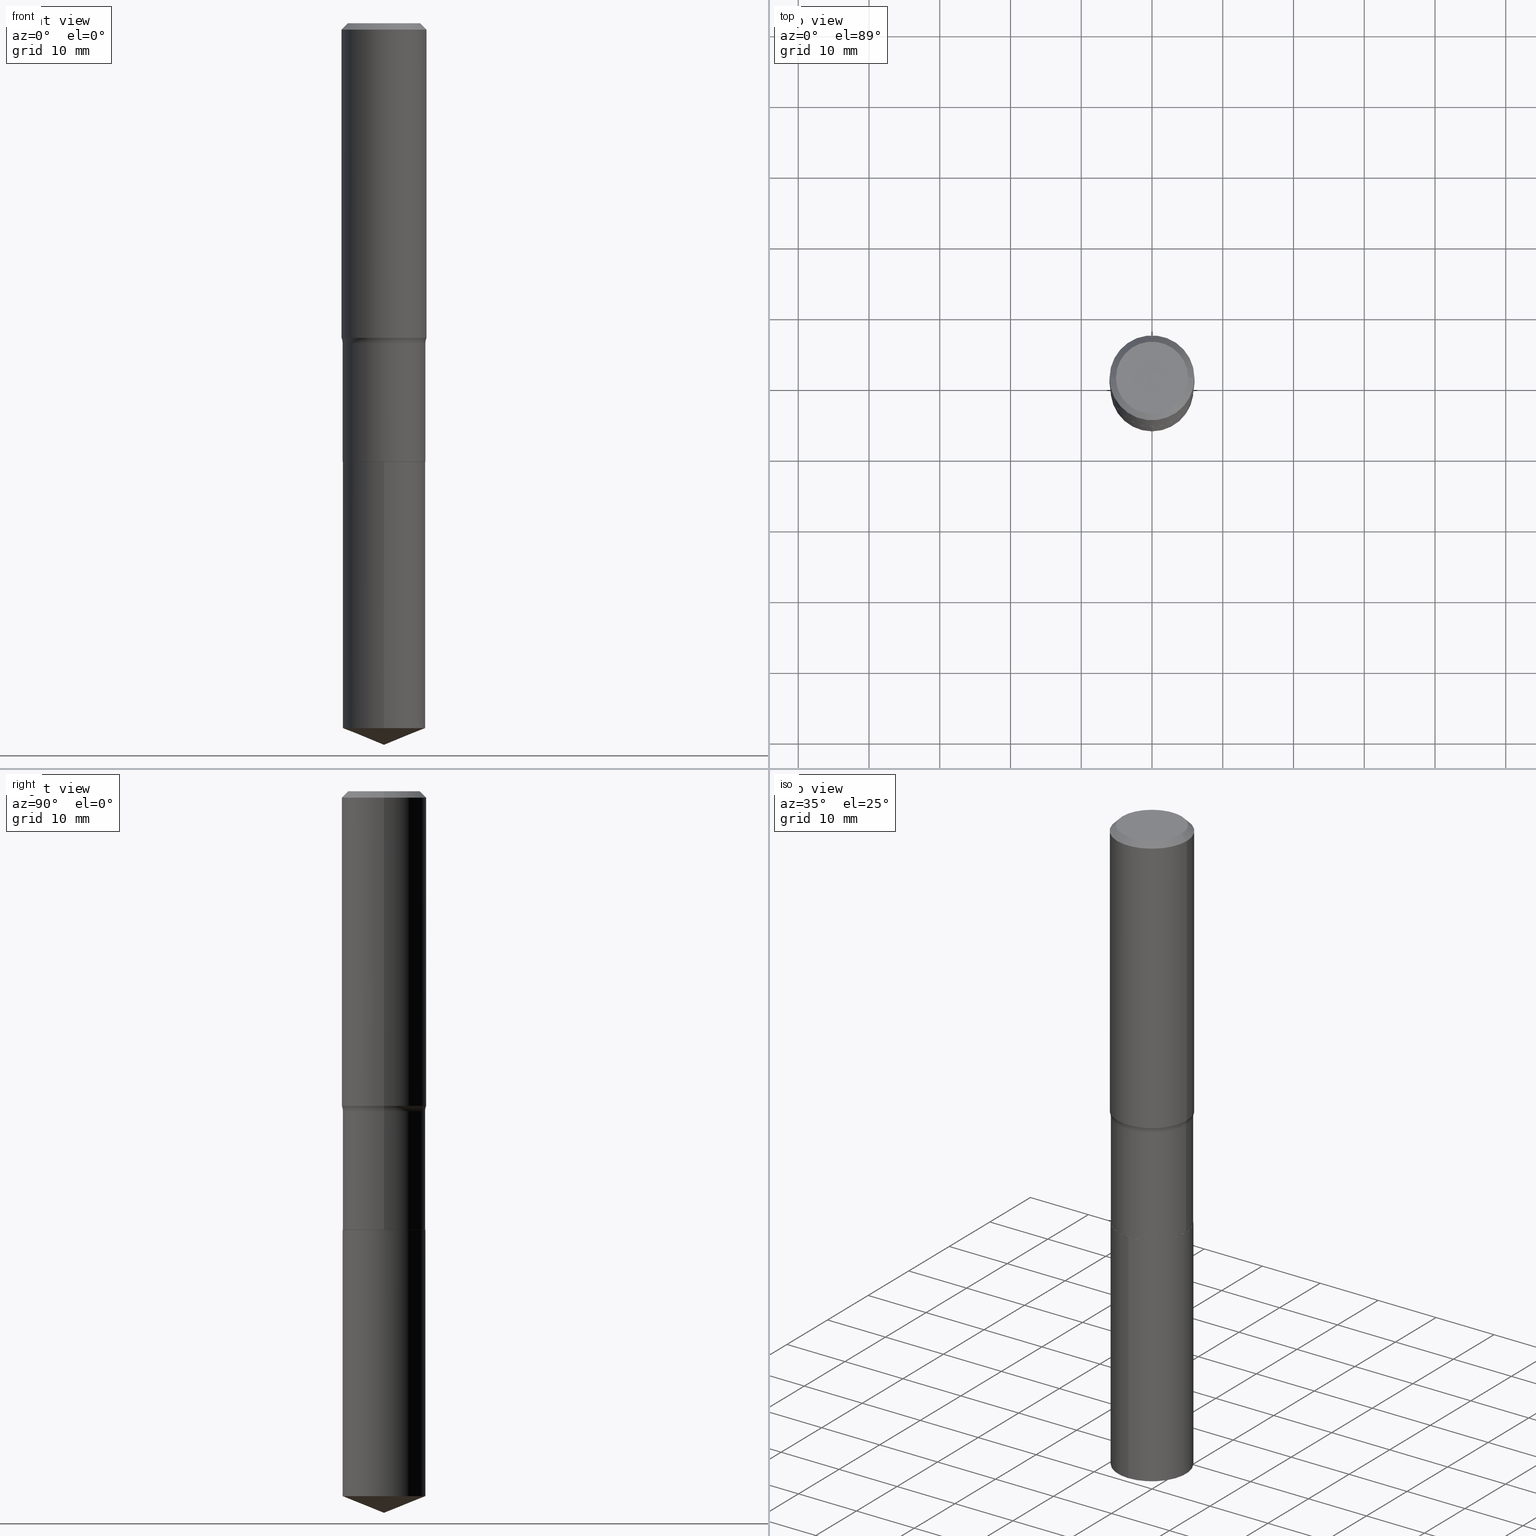
[diagram: canonical four-view strip — front | top / right | iso, engineering-drawing reading convention]
A machine part, canonical four-view strip (front | top / right | iso — engineering-drawing reading convention). The complete STEP part file that produces these views, byte-faithful:
ISO-10303-21;
HEADER;
FILE_DESCRIPTION (( 'STEP AP203' ),
    '1' );
FILE_NAME ('69207.STEP',
    '2024-04-19T17:23:30',
    ( '' ),
    ( '' ),
    'SwSTEP 2.0',
    'SolidWorks 2023',
    '' );
FILE_SCHEMA (( 'CONFIG_CONTROL_DESIGN' ));
ENDSEC;

DATA;
#1 = EDGE_LOOP ( 'NONE', ( #123, #155, #210, #284 ) ) ;
#2 = DIRECTION ( 'NONE',  ( -2.445468806185136597E-29, 3.491481338843145583E-15, 1.000000000000000000 ) ) ;
#3 = DIRECTION ( 'NONE',  ( -2.445425754346182208E-29, 3.491542991526886220E-15, 1.000000000000000000 ) ) ;
#4 =( NAMED_UNIT ( * ) PLANE_ANGLE_UNIT ( ) SI_UNIT ( $, .RADIAN. ) );
#5 = AXIS2_PLACEMENT_3D ( 'NONE', #18, #177, #332 ) ;
#6 = CLOSED_SHELL ( 'NONE', ( #167, #400, #464, #215, #93, #255, #445, #158, #114, #133, #408, #122 ) ) ;
#7 = EDGE_LOOP ( 'NONE', ( #324, #40, #430, #349 ) ) ;
#8 = APPROVAL_STATUS ( 'not_yet_approved' ) ;
#9 = EDGE_CURVE ( 'NONE', #115, #235, #407, .T. ) ;
#10 = VERTEX_POINT ( 'NONE', #147 ) ;
#11 = COORDINATED_UNIVERSAL_TIME_OFFSET ( 5, 0, .BEHIND. ) ;
#12 = APPROVAL_ROLE ( '' ) ;
#13 = APPROVAL_ROLE ( '' ) ;
#14 = EDGE_CURVE ( 'NONE', #235, #115, #375, .T. ) ;
#15 = SHAPE_DEFINITION_REPRESENTATION ( #67, #250 ) ;
#16 = DIRECTION ( 'NONE',  ( -2.445468806185136877E-29, 3.491481338843145188E-15, 1.000000000000000000 ) ) ;
#17 = CONICAL_SURFACE ( 'NONE', #97, 0.2361999999999999933, 0.7853981633974452814 ) ;
#18 = CARTESIAN_POINT ( 'NONE',  ( 5.967922074614207358E-29, -8.520611059312812251E-15, -2.440399999999999903 ) ) ;
#19 = EDGE_CURVE ( 'NONE', #249, #279, #328, .T. ) ;
#20 = DIRECTION ( 'NONE',  ( -2.445468806185136597E-29, 3.491481338843145583E-15, 1.000000000000000000 ) ) ;
#21 = CARTESIAN_POINT ( 'NONE',  ( -0.2361999999999999933, 1.525672600634282748E-15, -0.03543000000000021826 ) ) ;
#22 = SECURITY_CLASSIFICATION ( '', '', #293 ) ;
#23 = CARTESIAN_POINT ( 'NONE',  ( 0.2361999999999999933, -1.744152810908849053E-15, -0.03543000000000021826 ) ) ;
#24 = EDGE_CURVE ( 'NONE', #425, #386, #449, .T. ) ;
#25 = AXIS2_PLACEMENT_3D ( 'NONE', #225, #481, #479 ) ;
#26 = EDGE_LOOP ( 'NONE', ( #162, #30, #106, #281 ) ) ;
#27 = FACE_OUTER_BOUND ( 'NONE', #70, .T. ) ;
#28 = DIRECTION ( 'NONE',  ( 2.438088387897960049E-29, -3.491481338843145188E-15, -1.000000000000000000 ) ) ;
#29 = EDGE_CURVE ( 'NONE', #381, #235, #71, .T. ) ;
#30 = ORIENTED_EDGE ( 'NONE', *, *, #231, .T. ) ;
#31 = DIRECTION ( 'NONE',  ( -2.445468806185136597E-29, 3.491481338843145583E-15, 1.000000000000000000 ) ) ;
#32 = DIRECTION ( 'NONE',  ( 1.000000000000000000, -6.982962677686266711E-15, 4.876176775795935793E-29 ) ) ;
#33 = ORIENTED_EDGE ( 'NONE', *, *, #231, .F. ) ;
#34 = CARTESIAN_POINT ( 'NONE',  ( -0.2302999999999999770, 1.636379920455510564E-15, -1.132830751285704610E-29 ) ) ;
#35 = LINE ( 'NONE', #320, #96 ) ;
#36 = CC_DESIGN_APPROVAL ( #413, ( #22 ) ) ;
#37 = AXIS2_PLACEMENT_3D ( 'NONE', #102, #20, #377 ) ;
#38 = DIRECTION ( 'NONE',  ( 1.000000000000000000, -6.982962677686266711E-15, 0.000000000000000000 ) ) ;
#39 = DIRECTION ( 'NONE',  ( -2.445468806185136597E-29, 3.491481338843145583E-15, 1.000000000000000000 ) ) ;
#40 = ORIENTED_EDGE ( 'NONE', *, *, #423, .T. ) ;
#41 = DIRECTION ( 'NONE',  ( -2.445425754346182208E-29, 3.491542991526886614E-15, 1.000000000000000000 ) ) ;
#42 = DIRECTION ( 'NONE',  ( 1.000000000000000000, -6.982962677686266711E-15, 4.876140833081945105E-29 ) ) ;
#43 = ORIENTED_EDGE ( 'NONE', *, *, #19, .T. ) ;
#44 = CYLINDRICAL_SURFACE ( 'NONE', #197, 0.2302999999999999770 ) ;
#45 = CARTESIAN_POINT ( 'NONE',  ( 0.2362000000000002153, -7.764499826107920315E-15, -1.751441135774360447 ) ) ;
#46 = ORIENTED_EDGE ( 'NONE', *, *, #472, .T. ) ;
#47 = AXIS2_PLACEMENT_3D ( 'NONE', #259, #95, #140 ) ;
#48 = ORIENTED_EDGE ( 'NONE', *, *, #29, .F. ) ;
#49 = DATE_AND_TIME ( #127, #260 ) ;
#50 = ORIENTED_EDGE ( 'NONE', *, *, #59, .T. ) ;
#51 = CALENDAR_DATE ( 2024, 19, 4 ) ;
#52 = AXIS2_PLACEMENT_3D ( 'NONE', #108, #31, #348 ) ;
#53 = PERSON_AND_ORGANIZATION_ROLE ( 'creator' ) ;
#54 = DATE_AND_TIME ( #51, #244 ) ;
#55 = CARTESIAN_POINT ( 'NONE',  ( -0.3082999999999999075, -4.028423306399022223E-15, -1.781199999999999894 ) ) ;
#56 = AXIS2_PLACEMENT_3D ( 'NONE', #98, #373, #180 ) ;
#57 = AXIS2_PLACEMENT_3D ( 'NONE', #55, #213, #368 ) ;
#58 = DIRECTION ( 'NONE',  ( -2.445425754346182208E-29, 3.491542991526886614E-15, 1.000000000000000000 ) ) ;
#59 = EDGE_CURVE ( 'NONE', #415, #78, #240, .T. ) ;
#60 = CARTESIAN_POINT ( 'NONE',  ( 8.664295980313993487E-31, -1.237031838352134079E-16, -0.03543000000000021826 ) ) ;
#61 = DIRECTION ( 'NONE',  ( 1.000000000000000000, -6.982962677686268288E-15, 0.000000000000000000 ) ) ;
#62 = ORIENTED_EDGE ( 'NONE', *, *, #489, .F. ) ;
#63 = DIRECTION ( 'NONE',  ( -0.7071067811865453523, 2.468850131082234184E-15, -0.7071067811865496822 ) ) ;
#64 = MANIFOLD_SOLID_BREP ( 'Body-Move/Copy2[2]', #6 ) ;
#65 = CARTESIAN_POINT ( 'NONE',  ( 5.969144809017300159E-29, -8.522356799982234543E-15, -2.440900000000000070 ) ) ;
#66 = EDGE_LOOP ( 'NONE', ( #376, #339, #224 ) ) ;
#67 = PRODUCT_DEFINITION_SHAPE ( 'NONE', 'NONE',  #470 ) ;
#68 = DIRECTION ( 'NONE',  ( 1.000000000000000000, -6.982962677686266711E-15, 4.876176775795935793E-29 ) ) ;
#69 = DIRECTION ( 'NONE',  ( 1.000000000000000000, -6.982962677686265922E-15, 4.876176775795935793E-29 ) ) ;
#70 = EDGE_LOOP ( 'NONE', ( #183, #46, #242, #112 ) ) ;
#71 = LINE ( 'NONE', #340, #474 ) ;
#72 = DIRECTION ( 'NONE',  ( 1.000000000000000000, -6.982962677686266711E-15, 4.876140833081945105E-29 ) ) ;
#73 = EDGE_LOOP ( 'NONE', ( #247, #187, #426 ) ) ;
#74 = DIRECTION ( 'NONE',  ( -1.000000000000000000, 6.982962677686266711E-15, 0.000000000000000000 ) ) ;
#75 = CYLINDRICAL_SURFACE ( 'NONE', #467, 0.2362000000000001043 ) ;
#76 = APPROVAL_PERSON_ORGANIZATION ( #285, #209, #12 ) ;
#77 = ORIENTED_EDGE ( 'NONE', *, *, #9, .T. ) ;
#78 = VERTEX_POINT ( 'NONE', #394 ) ;
#79 = FACE_OUTER_BOUND ( 'NONE', #201, .T. ) ;
#80 = DIRECTION ( 'NONE',  ( 2.445468806185136597E-29, -3.491481338843145583E-15, -1.000000000000000000 ) ) ;
#81 = VERTEX_POINT ( 'NONE', #350 ) ;
#82 =( NAMED_UNIT ( * ) SI_UNIT ( $, .STERADIAN. ) SOLID_ANGLE_UNIT ( ) );
#83 = CIRCLE ( 'NONE', #466, 0.07799999999999995826 ) ;
#84 = CC_DESIGN_PERSON_AND_ORGANIZATION_ASSIGNMENT ( #207, #53, ( #396 ) ) ;
#85 = CIRCLE ( 'NONE', #25, 0.2302999999999999214 ) ;
#86 = ORIENTED_EDGE ( 'NONE', *, *, #103, .F. ) ;
#87 = CARTESIAN_POINT ( 'NONE',  ( 0.000000000000000000, 0.000000000000000000, 0.000000000000000000 ) ) ;
#88 = PERSON_AND_ORGANIZATION ( #336, #432 ) ;
#89 = DIRECTION ( 'NONE',  ( -2.445468806185136877E-29, 3.491481338843145188E-15, 1.000000000000000000 ) ) ;
#90 =( GEOMETRIC_REPRESENTATION_CONTEXT ( 3 ) GLOBAL_UNCERTAINTY_ASSIGNED_CONTEXT ( ( #463 ) ) GLOBAL_UNIT_ASSIGNED_CONTEXT ( ( #193, #4, #82 ) ) REPRESENTATION_CONTEXT ( 'NONE', 'WORKASPACE' ) );
#91 = VECTOR ( 'NONE', #16, 39.37007874015748143 ) ;
#92 = DATE_AND_TIME ( #212, #288 ) ;
#93 = ADVANCED_FACE ( 'NONE', ( #79 ), #44, .T. ) ;
#94 = FACE_OUTER_BOUND ( 'NONE', #146, .T. ) ;
#95 = DIRECTION ( 'NONE',  ( -2.445468806185136597E-29, 3.491481338843145583E-15, 1.000000000000000000 ) ) ;
#96 = VECTOR ( 'NONE', #458, 39.37007874015748143 ) ;
#97 = AXIS2_PLACEMENT_3D ( 'NONE', #276, #420, #74 ) ;
#98 = CARTESIAN_POINT ( 'NONE',  ( 0.000000000000000000, 0.000000000000000000, 0.000000000000000000 ) ) ;
#99 = EDGE_CURVE ( 'NONE', #135, #381, #469, .T. ) ;
#100 = DIRECTION ( 'NONE',  ( -2.445468806185136597E-29, 3.491481338843145583E-15, 1.000000000000000000 ) ) ;
#101 = VERTEX_POINT ( 'NONE', #188 ) ;
#102 = CARTESIAN_POINT ( 'NONE',  ( 4.355869037576965171E-29, -6.219026560747410438E-15, -1.781199999999999894 ) ) ;
#103 = EDGE_CURVE ( 'NONE', #135, #115, #347, .T. ) ;
#104 = DIRECTION ( 'NONE',  ( -0.7071067811864267805, 7.493145998869918709E-15, 0.7071067811866682540 ) ) ;
#105 = AXIS2_PLACEMENT_3D ( 'NONE', #460, #283, #69 ) ;
#106 = ORIENTED_EDGE ( 'NONE', *, *, #265, .T. ) ;
#107 = DIRECTION ( 'NONE',  ( -2.445468806185136597E-29, 3.491481338843145583E-15, 1.000000000000000000 ) ) ;
#108 = CARTESIAN_POINT ( 'NONE',  ( 4.355869037576965171E-29, -6.219026560747410438E-15, -1.781199999999999894 ) ) ;
#109 = AXIS2_PLACEMENT_3D ( 'NONE', #338, #300, #61 ) ;
#110 = DIRECTION ( 'NONE',  ( -2.445425754346182208E-29, 3.491542991526886614E-15, 1.000000000000000000 ) ) ;
#111 = CARTESIAN_POINT ( 'NONE',  ( 0.000000000000000000, 0.000000000000000000, 0.000000000000000000 ) ) ;
#112 = ORIENTED_EDGE ( 'NONE', *, *, #226, .F. ) ;
#113 = CARTESIAN_POINT ( 'NONE',  ( 0.000000000000000000, 0.000000000000000000, 0.000000000000000000 ) ) ;
#114 = ADVANCED_FACE ( 'NONE', ( #116 ), #17, .T. ) ;
#115 = VERTEX_POINT ( 'NONE', #227 ) ;
#116 = FACE_OUTER_BOUND ( 'NONE', #318, .T. ) ;
#117 = LINE ( 'NONE', #387, #480 ) ;
#118 = EDGE_CURVE ( 'NONE', #381, #135, #174, .T. ) ;
#119 = EDGE_LOOP ( 'NONE', ( #270, #492, #459, #86 ) ) ;
#120 = FACE_OUTER_BOUND ( 'NONE', #1, .T. ) ;
#121 = LOCAL_TIME ( 13, 23, 30.00000000000000000, #11 ) ;
#122 = ADVANCED_FACE ( 'NONE', ( #477 ), #246, .T. ) ;
#123 = ORIENTED_EDGE ( 'NONE', *, *, #175, .T. ) ;
#124 = DIRECTION ( 'NONE',  ( -2.445425754346182208E-29, 3.491542991526886614E-15, 1.000000000000000000 ) ) ;
#125 = CARTESIAN_POINT ( 'NONE',  ( 9.820096201727964997E-29, -1.402098919107452008E-14, -4.015699999999999825 ) ) ;
#126 = ORIENTED_EDGE ( 'NONE', *, *, #434, .F. ) ;
#127 = CALENDAR_DATE ( 2024, 19, 4 ) ;
#128 = ORIENTED_EDGE ( 'NONE', *, *, #118, .T. ) ;
#129 = DIRECTION ( 'NONE',  ( 0.000000000000000000, 0.000000000000000000, 1.000000000000000000 ) ) ;
#130 = VECTOR ( 'NONE', #63, 39.37007874015748143 ) ;
#131 = PRODUCT_RELATED_PRODUCT_CATEGORY ( 'detail', '', ( #149 ) ) ;
#132 = AXIS2_PLACEMENT_3D ( 'NONE', #409, #100, #437 ) ;
#133 = ADVANCED_FACE ( 'NONE', ( #296 ), #404, .F. ) ;
#134 = APPROVAL_DATE_TIME ( #329, #176 ) ;
#135 = VERTEX_POINT ( 'NONE', #485 ) ;
#136 = PERSON_AND_ORGANIZATION_ROLE ( 'design_supplier' ) ;
#137 = EDGE_CURVE ( 'NONE', #425, #249, #317, .T. ) ;
#138 = VECTOR ( 'NONE', #438, 39.37007874015748143 ) ;
#139 = DATE_TIME_ROLE ( 'classification_date' ) ;
#140 = DIRECTION ( 'NONE',  ( 1.000000000000000000, -6.982962677686267499E-15, 0.000000000000000000 ) ) ;
#141 = EDGE_CURVE ( 'NONE', #159, #415, #256, .T. ) ;
#142 = LINE ( 'NONE', #23, #138 ) ;
#143 = DIRECTION ( 'NONE',  ( 1.000000000000000000, -6.982962677686274599E-15, 0.000000000000000000 ) ) ;
#144 = LINE ( 'NONE', #21, #130 ) ;
#145 = DIRECTION ( 'NONE',  ( -6.982962677686265922E-15, -1.000000000000000000, 2.372425526412734110E-15 ) ) ;
#146 = EDGE_LOOP ( 'NONE', ( #77, #358 ) ) ;
#147 = CARTESIAN_POINT ( 'NONE',  ( 0.2007700000000000040, -1.560767496960719672E-15, 4.096137381458473721E-18 ) ) ;
#148 = DIRECTION ( 'NONE',  ( 1.000000000000000000, -6.982962677686267499E-15, 0.000000000000000000 ) ) ;
#149 = PRODUCT ( '69207', '69207', '', ( #398 ) ) ;
#150 = EDGE_CURVE ( 'NONE', #81, #159, #310, .T. ) ;
#151 = EDGE_LOOP ( 'NONE', ( #206, #194, #397, #229 ) ) ;
#152 = CARTESIAN_POINT ( 'NONE',  ( 5.967922074614207358E-29, -8.520611059312812251E-15, -2.440399999999999903 ) ) ;
#153 = AXIS2_PLACEMENT_3D ( 'NONE', #220, #267, #219 ) ;
#154 = DIRECTION ( 'NONE',  ( 1.000000000000000000, -6.982962677686267499E-15, 0.000000000000000000 ) ) ;
#155 = ORIENTED_EDGE ( 'NONE', *, *, #137, .T. ) ;
#156 = CARTESIAN_POINT ( 'NONE',  ( -1.608176304671087313E-15, -0.2303000000000085257, -2.440899999999999181 ) ) ;
#157 = LENGTH_MEASURE_WITH_UNIT ( LENGTH_MEASURE( 0.02539999999999999897 ), #383 );
#158 = ADVANCED_FACE ( 'NONE', ( #342 ), #450, .T. ) ;
#159 = VERTEX_POINT ( 'NONE', #354 ) ;
#160 = CARTESIAN_POINT ( 'NONE',  ( 5.969144809017300159E-29, -8.522356799982234543E-15, -2.440900000000000070 ) ) ;
#161 = EDGE_CURVE ( 'NONE', #386, #279, #385, .T. ) ;
#162 = ORIENTED_EDGE ( 'NONE', *, *, #491, .F. ) ;
#163 = DIRECTION ( 'NONE',  ( -2.445468806185136597E-29, 3.491481338843145583E-15, 1.000000000000000000 ) ) ;
#164 = DIRECTION ( 'NONE',  ( 1.000000000000000000, -6.982962677686266711E-15, 4.876176775795935793E-29 ) ) ;
#165 = AXIS2_PLACEMENT_3D ( 'NONE', #65, #262, #228 ) ;
#166 = ORIENTED_EDGE ( 'NONE', *, *, #423, .F. ) ;
#167 = ADVANCED_FACE ( 'NONE', ( #299 ), #399, .T. ) ;
#168 = APPROVAL_STATUS ( 'not_yet_approved' ) ;
#169 = VERTEX_POINT ( 'NONE', #334 ) ;
#170 = CALENDAR_DATE ( 2024, 19, 4 ) ;
#171 = PERSON_AND_ORGANIZATION ( #336, #432 ) ;
#172 = PERSON_AND_ORGANIZATION ( #336, #432 ) ;
#173 = AXIS2_PLACEMENT_3D ( 'NONE', #419, #2, #72 ) ;
#174 = CIRCLE ( 'NONE', #345, 0.2303000000000000047 ) ;
#175 = EDGE_CURVE ( 'NONE', #386, #425, #217, .T. ) ;
#176 = APPROVAL ( #8, 'UNSPECIFIED' ) ;
#177 = DIRECTION ( 'NONE',  ( -2.445468806185136597E-29, 3.491481338843145583E-15, 1.000000000000000000 ) ) ;
#178 = CARTESIAN_POINT ( 'NONE',  ( -0.2361999999999999933, -1.441111670871460516E-15, -0.03543000000000021826 ) ) ;
#179 = FACE_OUTER_BOUND ( 'NONE', #73, .T. ) ;
#180 = DIRECTION ( 'NONE',  ( 1.000000000000000000, -6.982962677686266711E-15, 4.876176775795935793E-29 ) ) ;
#181 = CARTESIAN_POINT ( 'NONE',  ( -8.645640321485652588E-28, 1.234414837980197635E-13, 35.35437874015748605 ) ) ;
#182 = EDGE_CURVE ( 'NONE', #352, #78, #85, .T. ) ;
#183 = ORIENTED_EDGE ( 'NONE', *, *, #59, .F. ) ;
#184 = CARTESIAN_POINT ( 'NONE',  ( 8.664295980313993487E-31, -1.237031838352134079E-16, -0.03543000000000021826 ) ) ;
#185 = DIRECTION ( 'NONE',  ( -2.445468806185136597E-29, 3.491481338843145583E-15, 1.000000000000000000 ) ) ;
#186 = AXIS2_PLACEMENT_3D ( 'NONE', #406, #58, #304 ) ;
#187 = ORIENTED_EDGE ( 'NONE', *, *, #366, .T. ) ;
#188 = CARTESIAN_POINT ( 'NONE',  ( -0.2007700000000000040, 1.463821008716677338E-15, 4.096137381438094301E-18 ) ) ;
#189 = CARTESIAN_POINT ( 'NONE',  ( 0.2303000000000000047, -1.012878736398395971E-14, -2.440399999999999903 ) ) ;
#190 = AXIS2_PLACEMENT_3D ( 'NONE', #447, #353, #38 ) ;
#191 = ORIENTED_EDGE ( 'NONE', *, *, #161, .T. ) ;
#192 = DIRECTION ( 'NONE',  ( -6.982962677686265922E-15, -1.000000000000000000, 3.558638289619100968E-15 ) ) ;
#193 =( CONVERSION_BASED_UNIT ( 'INCH', #157 ) LENGTH_UNIT ( ) NAMED_UNIT ( #205 ) );
#194 = ORIENTED_EDGE ( 'NONE', *, *, #175, .F. ) ;
#195 = LINE ( 'NONE', #125, #473 ) ;
#196 = LOCAL_TIME ( 13, 23, 30.00000000000000000, #365 ) ;
#197 = AXIS2_PLACEMENT_3D ( 'NONE', #418, #107, #68 ) ;
#198 = CC_DESIGN_PERSON_AND_ORGANIZATION_ASSIGNMENT ( #251, #136, ( #396 ) ) ;
#199 = ORIENTED_EDGE ( 'NONE', *, *, #417, .F. ) ;
#200 = DIRECTION ( 'NONE',  ( 1.000000000000000000, 0.000000000000000000, 0.000000000000000000 ) ) ;
#201 = EDGE_LOOP ( 'NONE', ( #355, #50, #315, #126 ) ) ;
#202 = EDGE_CURVE ( 'NONE', #386, #352, #83, .T. ) ;
#203 = PERSON_AND_ORGANIZATION ( #336, #432 ) ;
#204 = CARTESIAN_POINT ( 'NONE',  ( 0.2362000000000001043, -1.649375784469496920E-15, 1.151752954443000508E-29 ) ) ;
#205 = DIMENSIONAL_EXPONENTS ( 1.000000000000000000, 0.000000000000000000, 0.000000000000000000, 0.000000000000000000, 0.000000000000000000, 0.000000000000000000, 0.000000000000000000 ) ;
#206 = ORIENTED_EDGE ( 'NONE', *, *, #314, .F. ) ;
#207 = PERSON_AND_ORGANIZATION ( #336, #432 ) ;
#208 = CIRCLE ( 'NONE', #311, 0.2303000000000000047 ) ;
#209 = APPROVAL ( #168, 'UNSPECIFIED' ) ;
#210 = ORIENTED_EDGE ( 'NONE', *, *, #265, .F. ) ;
#211 = CARTESIAN_POINT ( 'NONE',  ( 5.969144809017300159E-29, -8.522356799982234543E-15, -2.440900000000000070 ) ) ;
#212 = CALENDAR_DATE ( 2024, 19, 4 ) ;
#213 = DIRECTION ( 'NONE',  ( 7.105427357601001859E-15, 1.000000000000000000, -3.491481338843145583E-15 ) ) ;
#214 = AXIS2_PLACEMENT_3D ( 'NONE', #237, #124, #390 ) ;
#215 = ADVANCED_FACE ( 'NONE', ( #302 ), #243, .F. ) ;
#216 = CC_DESIGN_APPROVAL ( #176, ( #396 ) ) ;
#217 = CIRCLE ( 'NONE', #132, 0.2362000000000002153 ) ;
#218 = DIRECTION ( 'NONE',  ( -2.445468806185136597E-29, 3.491481338843145583E-15, 1.000000000000000000 ) ) ;
#219 = DIRECTION ( 'NONE',  ( -6.982962677686265922E-15, -1.000000000000000000, 3.498761904101832685E-15 ) ) ;
#220 = CARTESIAN_POINT ( 'NONE',  ( -8.645640321485652588E-28, 1.234414837980197635E-13, 35.35437874015748605 ) ) ;
#221 = DESIGN_CONTEXT ( 'detailed design', #476, 'design' ) ;
#222 = CIRCLE ( 'NONE', #301, 0.2007700000000000040 ) ;
#223 = CONICAL_SURFACE ( 'NONE', #295, 97.44436430772827862, 1.186823891356144411 ) ;
#224 = ORIENTED_EDGE ( 'NONE', *, *, #118, .F. ) ;
#225 = CARTESIAN_POINT ( 'NONE',  ( 4.355869037576965171E-29, -6.219026560747410438E-15, -1.781199999999999894 ) ) ;
#226 = EDGE_CURVE ( 'NONE', #78, #352, #331, .T. ) ;
#227 = CARTESIAN_POINT ( 'NONE',  ( -1.608176304671087313E-15, -0.2303000000000085257, -2.440899999999999181 ) ) ;
#228 = DIRECTION ( 'NONE',  ( 1.000000000000000000, -6.982962677686267499E-15, 0.000000000000000000 ) ) ;
#229 = ORIENTED_EDGE ( 'NONE', *, *, #182, .T. ) ;
#230 = LINE ( 'NONE', #277, #335 ) ;
#231 = EDGE_CURVE ( 'NONE', #10, #279, #142, .T. ) ;
#232 = ORIENTED_EDGE ( 'NONE', *, *, #150, .F. ) ;
#233 = DIRECTION ( 'NONE',  ( -2.445425754346182208E-29, 3.491542991526886614E-15, 1.000000000000000000 ) ) ;
#234 = ADVANCED_FACE ( 'NONE', ( #264 ), #263, .T. ) ;
#235 = VERTEX_POINT ( 'NONE', #257 ) ;
#236 = DIRECTION ( 'NONE',  ( -2.445468806185136597E-29, 3.491481338843145583E-15, 1.000000000000000000 ) ) ;
#237 = CARTESIAN_POINT ( 'NONE',  ( 5.969144809017299038E-29, -8.522356799982232966E-15, -2.440900000000000070 ) ) ;
#238 = CARTESIAN_POINT ( 'NONE',  ( 5.969144809017299038E-29, -8.522356799982232966E-15, -2.440900000000000070 ) ) ;
#239 = EDGE_LOOP ( 'NONE', ( #275, #465, #191, #446 ) ) ;
#240 = LINE ( 'NONE', #34, #367 ) ;
#241 = CARTESIAN_POINT ( 'NONE',  ( -0.2303000000000000047, -5.733438889574600189E-15, -2.440399999999999903 ) ) ;
#242 = ORIENTED_EDGE ( 'NONE', *, *, #434, .T. ) ;
#243 = TOROIDAL_SURFACE ( 'NONE', #37, 0.3082999999999999075, 0.07799999999999997213 ) ;
#244 = LOCAL_TIME ( 13, 23, 30.00000000000000000, #402 ) ;
#245 = ADVANCED_FACE ( 'NONE', ( #442 ), #287, .T. ) ;
#246 = CONICAL_SURFACE ( 'NONE', #261, 0.2298000000000000043, 0.7853981633972775267 ) ;
#247 = ORIENTED_EDGE ( 'NONE', *, *, #388, .F. ) ;
#248 = APPLICATION_PROTOCOL_DEFINITION ( 'international standard', 'config_control_design', 1994, #364 ) ;
#249 = VERTEX_POINT ( 'NONE', #178 ) ;
#250 = ADVANCED_BREP_SHAPE_REPRESENTATION ( '69207', ( #410, #64, #252 ), #90 ) ;
#251 = PERSON_AND_ORGANIZATION ( #336, #432 ) ;
#252 = AXIS2_PLACEMENT_3D ( 'NONE', #87, #129, #200 ) ;
#253 = AXIS2_PLACEMENT_3D ( 'NONE', #484, #403, #297 ) ;
#254 = APPROVAL_ROLE ( '' ) ;
#255 = ADVANCED_FACE ( 'NONE', ( #27 ), #482, .T. ) ;
#256 = LINE ( 'NONE', #392, #405 ) ;
#257 = CARTESIAN_POINT ( 'NONE',  ( 1.636379920455606805E-15, 0.2302999999999914560, -2.440900000000000514 ) ) ;
#258 = CC_DESIGN_DATE_AND_TIME_ASSIGNMENT ( #92, #139, ( #22 ) ) ;
#259 = CARTESIAN_POINT ( 'NONE',  ( 5.969144809017300159E-29, -8.522356799982234543E-15, -2.440900000000000070 ) ) ;
#260 = LOCAL_TIME ( 13, 23, 30.00000000000000000, #462 ) ;
#261 = AXIS2_PLACEMENT_3D ( 'NONE', #211, #185, #154 ) ;
#262 = DIRECTION ( 'NONE',  ( -2.445468806185136597E-29, 3.491481338843145583E-15, 1.000000000000000000 ) ) ;
#263 = CYLINDRICAL_SURFACE ( 'NONE', #186, 0.2303000000000000047 ) ;
#264 = FACE_OUTER_BOUND ( 'NONE', #119, .T. ) ;
#265 = EDGE_CURVE ( 'NONE', #279, #249, #431, .T. ) ;
#266 = ORIENTED_EDGE ( 'NONE', *, *, #314, .T. ) ;
#267 = DIRECTION ( 'NONE',  ( -2.445425754346182208E-29, 3.491542991526886614E-15, 1.000000000000000000 ) ) ;
#268 = TOROIDAL_SURFACE ( 'NONE', #52, 0.3082999999999999075, 0.07799999999999997213 ) ;
#269 = AXIS2_PLACEMENT_3D ( 'NONE', #305, #28, #341 ) ;
#270 = ORIENTED_EDGE ( 'NONE', *, *, #99, .T. ) ;
#271 = DIRECTION ( 'NONE',  ( -6.474490251793178629E-15, -0.9271838545667862030, 0.3746065934159149569 ) ) ;
#272 = CC_DESIGN_DATE_AND_TIME_ASSIGNMENT ( #325, #468, ( #470 ) ) ;
#273 = ORIENTED_EDGE ( 'NONE', *, *, #226, .T. ) ;
#274 = DIRECTION ( 'NONE',  ( -2.445468806185136597E-29, 3.491481338843145583E-15, 1.000000000000000000 ) ) ;
#275 = ORIENTED_EDGE ( 'NONE', *, *, #137, .F. ) ;
#276 = CARTESIAN_POINT ( 'NONE',  ( 8.664295980313993487E-31, -1.237031838352134079E-16, -0.03543000000000021826 ) ) ;
#277 = CARTESIAN_POINT ( 'NONE',  ( 0.2298000000000000043, -1.012704162331453900E-14, -2.440900000000000070 ) ) ;
#278 = CONICAL_SURFACE ( 'NONE', #294, 0.2361999999999999933, 0.7853981633974452814 ) ;
#279 = VERTEX_POINT ( 'NONE', #412 ) ;
#280 = FACE_OUTER_BOUND ( 'NONE', #393, .T. ) ;
#281 = ORIENTED_EDGE ( 'NONE', *, *, #298, .F. ) ;
#282 = CARTESIAN_POINT ( 'NONE',  ( 4.283094663405664699E-29, -6.115124041638423001E-15, -1.751441135774360447 ) ) ;
#283 = DIRECTION ( 'NONE',  ( -2.438088387897960049E-29, 3.491481338843145188E-15, 1.000000000000000000 ) ) ;
#284 = ORIENTED_EDGE ( 'NONE', *, *, #161, .F. ) ;
#285 = PERSON_AND_ORGANIZATION ( #336, #432 ) ;
#286 = EDGE_LOOP ( 'NONE', ( #323, #306 ) ) ;
#287 = CONICAL_SURFACE ( 'NONE', #153, 97.44436430772827862, 1.186823891356144411 ) ;
#288 = LOCAL_TIME ( 13, 23, 30.00000000000000000, #292 ) ;
#289 = AXIS2_PLACEMENT_3D ( 'NONE', #282, #163, #427 ) ;
#290 = PERSON_AND_ORGANIZATION_ROLE ( 'design_owner' ) ;
#291 = EDGE_LOOP ( 'NONE', ( #483, #346, #321, #199 ) ) ;
#292 = COORDINATED_UNIVERSAL_TIME_OFFSET ( 5, 0, .BEHIND. ) ;
#293 = SECURITY_CLASSIFICATION_LEVEL ( 'unclassified' ) ;
#294 = AXIS2_PLACEMENT_3D ( 'NONE', #184, #80, #351 ) ;
#295 = AXIS2_PLACEMENT_3D ( 'NONE', #181, #444, #333 ) ;
#296 = FACE_OUTER_BOUND ( 'NONE', #286, .T. ) ;
#297 = DIRECTION ( 'NONE',  ( 6.982962677686265922E-15, 1.000000000000000000, -3.491542991526886220E-15 ) ) ;
#298 = EDGE_CURVE ( 'NONE', #101, #249, #144, .T. ) ;
#299 = FACE_OUTER_BOUND ( 'NONE', #291, .T. ) ;
#300 = DIRECTION ( 'NONE',  ( -2.445468806185136597E-29, 3.491481338843145583E-15, 1.000000000000000000 ) ) ;
#301 = AXIS2_PLACEMENT_3D ( 'NONE', #452, #39, #42 ) ;
#302 = FACE_OUTER_BOUND ( 'NONE', #455, .T. ) ;
#303 = ADVANCED_FACE ( 'NONE', ( #179 ), #223, .T. ) ;
#304 = DIRECTION ( 'NONE',  ( -6.982962677686265922E-15, -1.000000000000000000, 3.558638289619100968E-15 ) ) ;
#305 = CARTESIAN_POINT ( 'NONE',  ( -5.008488096090115757E-47, 7.150793614331959538E-33, 2.048068690724057264E-18 ) ) ;
#306 = ORIENTED_EDGE ( 'NONE', *, *, #491, .T. ) ;
#307 = DIRECTION ( 'NONE',  ( -6.982962677686265922E-15, -1.000000000000000000, 3.558638289619100968E-15 ) ) ;
#308 = CARTESIAN_POINT ( 'NONE',  ( -0.2362000000000002153, -4.436822099773065029E-15, -1.751441135774360447 ) ) ;
#309 = ADVANCED_FACE ( 'NONE', ( #94 ), #371, .F. ) ;
#310 = CIRCLE ( 'NONE', #165, 0.2298000000000000043 ) ;
#311 = AXIS2_PLACEMENT_3D ( 'NONE', #152, #236, #316 ) ;
#312 = AXIS2_PLACEMENT_3D ( 'NONE', #362, #41, #307 ) ;
#313 = AXIS2_PLACEMENT_3D ( 'NONE', #111, #380, #32 ) ;
#314 = EDGE_CURVE ( 'NONE', #425, #78, #357, .T. ) ;
#315 = ORIENTED_EDGE ( 'NONE', *, *, #182, .F. ) ;
#316 = DIRECTION ( 'NONE',  ( 1.000000000000000000, -6.982962677686265922E-15, 0.000000000000000000 ) ) ;
#317 = LINE ( 'NONE', #454, #91 ) ;
#318 = EDGE_LOOP ( 'NONE', ( #33, #62, #389, #43 ) ) ;
#319 = ORIENTED_EDGE ( 'NONE', *, *, #14, .F. ) ;
#320 = CARTESIAN_POINT ( 'NONE',  ( 0.2302999999999999770, -1.608176304671147069E-15, 1.122983511465803858E-29 ) ) ;
#321 = ORIENTED_EDGE ( 'NONE', *, *, #326, .F. ) ;
#322 = VECTOR ( 'NONE', #89, 39.37007874015748143 ) ;
#323 = ORIENTED_EDGE ( 'NONE', *, *, #489, .T. ) ;
#324 = ORIENTED_EDGE ( 'NONE', *, *, #141, .F. ) ;
#325 = DATE_AND_TIME ( #170, #121 ) ;
#326 = EDGE_CURVE ( 'NONE', #457, #415, #448, .T. ) ;
#327 = PERSON_AND_ORGANIZATION_ROLE ( 'classification_officer' ) ;
#328 = CIRCLE ( 'NONE', #190, 0.2361999999999999933 ) ;
#329 = DATE_AND_TIME ( #471, #196 ) ;
#330 = CIRCLE ( 'NONE', #173, 0.2007700000000000040 ) ;
#331 = CIRCLE ( 'NONE', #109, 0.2302999999999999214 ) ;
#332 = DIRECTION ( 'NONE',  ( 1.000000000000000000, -6.982962677686265922E-15, 0.000000000000000000 ) ) ;
#333 = DIRECTION ( 'NONE',  ( -6.982962677686265922E-15, -1.000000000000000000, 3.498761904101832685E-15 ) ) ;
#334 = CARTESIAN_POINT ( 'NONE',  ( 9.820096201727962755E-29, -1.402098919107451851E-14, -4.015699999999999825 ) ) ;
#335 = VECTOR ( 'NONE', #395, 39.37007874015748143 ) ;
#336 = PERSON ( 'UNSPECIFIED', 'UNSPECIFIED', 'UNSPECIFIED', ('UNSPECIFIED'), ('UNSPECIFIED'), ('UNSPECIFIED') ) ;
#337 = CLOSED_SHELL ( 'NONE', ( #234, #303, #245, #453, #309 ) ) ;
#338 = CARTESIAN_POINT ( 'NONE',  ( 4.355869037576965171E-29, -6.219026560747410438E-15, -1.781199999999999894 ) ) ;
#339 = ORIENTED_EDGE ( 'NONE', *, *, #388, .T. ) ;
#340 = CARTESIAN_POINT ( 'NONE',  ( 1.636379920455570123E-15, 0.2302999999999914560, -2.440900000000000514 ) ) ;
#341 = DIRECTION ( 'NONE',  ( -1.000000000000000000, 6.982962677686265922E-15, -4.876176775795935793E-29 ) ) ;
#342 = FACE_OUTER_BOUND ( 'NONE', #239, .T. ) ;
#343 = DIRECTION ( 'NONE',  ( -2.445425754346182208E-29, 3.491542991526886614E-15, 1.000000000000000000 ) ) ;
#344 = AXIS2_PLACEMENT_3D ( 'NONE', #60, #218, #372 ) ;
#345 = AXIS2_PLACEMENT_3D ( 'NONE', #370, #110, #145 ) ;
#346 = ORIENTED_EDGE ( 'NONE', *, *, #141, .T. ) ;
#347 = LINE ( 'NONE', #156, #490 ) ;
#348 = DIRECTION ( 'NONE',  ( 1.000000000000000000, -6.982962677686268288E-15, 4.883557194083113462E-29 ) ) ;
#349 = ORIENTED_EDGE ( 'NONE', *, *, #472, .F. ) ;
#350 = CARTESIAN_POINT ( 'NONE',  ( 0.2298000000000000043, -1.012704162331453900E-14, -2.440900000000000070 ) ) ;
#351 = DIRECTION ( 'NONE',  ( -1.000000000000000000, 6.982962677686266711E-15, 0.000000000000000000 ) ) ;
#352 = VERTEX_POINT ( 'NONE', #478 ) ;
#353 = DIRECTION ( 'NONE',  ( -2.445468806185136597E-29, 3.491481338843145583E-15, 1.000000000000000000 ) ) ;
#354 = CARTESIAN_POINT ( 'NONE',  ( -0.2298000000000000043, -6.886880366031413874E-15, -2.440900000000000070 ) ) ;
#355 = ORIENTED_EDGE ( 'NONE', *, *, #326, .T. ) ;
#356 = PLANE ( 'NONE',  #105 ) ;
#357 = CIRCLE ( 'NONE', #57, 0.07799999999999995826 ) ;
#358 = ORIENTED_EDGE ( 'NONE', *, *, #14, .T. ) ;
#359 = CC_DESIGN_PERSON_AND_ORGANIZATION_ASSIGNMENT ( #203, #290, ( #149 ) ) ;
#360 = PERSON_AND_ORGANIZATION_ROLE ( 'creator' ) ;
#361 = APPROVAL_DATE_TIME ( #49, #209 ) ;
#362 = CARTESIAN_POINT ( 'NONE',  ( 5.969144809017299038E-29, -8.522356799982232966E-15, -2.440900000000000070 ) ) ;
#363 = APPROVAL_DATE_TIME ( #54, #413 ) ;
#364 = APPLICATION_CONTEXT ( 'configuration controlled 3d designs of mechanical parts and assemblies' ) ;
#365 = COORDINATED_UNIVERSAL_TIME_OFFSET ( 5, 0, .BEHIND. ) ;
#366 = EDGE_CURVE ( 'NONE', #169, #381, #117, .T. ) ;
#367 = VECTOR ( 'NONE', #486, 39.37007874015748143 ) ;
#368 = DIRECTION ( 'NONE',  ( -1.000000000000000000, 7.105427357601001859E-15, 0.000000000000000000 ) ) ;
#369 = AXIS2_PLACEMENT_3D ( 'NONE', #160, #487, #148 ) ;
#370 = CARTESIAN_POINT ( 'NONE',  ( 9.592661170359868034E-29, -1.369596026499982029E-14, -3.922652760190163512 ) ) ;
#371 = PLANE ( 'NONE',  #253 ) ;
#372 = DIRECTION ( 'NONE',  ( 1.000000000000000000, -6.982962677686266711E-15, 0.000000000000000000 ) ) ;
#373 = DIRECTION ( 'NONE',  ( -2.445468806185136597E-29, 3.491481338843145583E-15, 1.000000000000000000 ) ) ;
#374 = CC_DESIGN_SECURITY_CLASSIFICATION ( #22, ( #396 ) ) ;
#375 = CIRCLE ( 'NONE', #214, 0.2303000000000000047 ) ;
#376 = ORIENTED_EDGE ( 'NONE', *, *, #366, .F. ) ;
#377 = DIRECTION ( 'NONE',  ( 1.000000000000000000, -6.982962677686268288E-15, 4.883557194083113462E-29 ) ) ;
#378 = CARTESIAN_POINT ( 'NONE',  ( 9.592661170359868034E-29, -1.369596026499982029E-14, -3.922652760190163512 ) ) ;
#379 = DIRECTION ( 'NONE',  ( 6.588037525764790502E-15, 0.9271838545667887566, 0.3746065934159085176 ) ) ;
#380 = DIRECTION ( 'NONE',  ( -2.445468806185136597E-29, 3.491481338843145583E-15, 1.000000000000000000 ) ) ;
#381 = VERTEX_POINT ( 'NONE', #428 ) ;
#382 = DIRECTION ( 'NONE',  ( -6.982962677686265922E-15, -1.000000000000000000, 2.372425526412734110E-15 ) ) ;
#383 =( LENGTH_UNIT ( ) NAMED_UNIT ( * ) SI_UNIT ( $, .METRE. ) );
#384 = AXIS2_PLACEMENT_3D ( 'NONE', #238, #343, #192 ) ;
#385 = LINE ( 'NONE', #204, #322 ) ;
#386 = VERTEX_POINT ( 'NONE', #45 ) ;
#387 = CARTESIAN_POINT ( 'NONE',  ( 9.820308215142285184E-29, -1.402068821500303058E-14, -4.015699999999999825 ) ) ;
#388 = EDGE_CURVE ( 'NONE', #169, #135, #195, .T. ) ;
#389 = ORIENTED_EDGE ( 'NONE', *, *, #298, .T. ) ;
#390 = DIRECTION ( 'NONE',  ( -6.982962677686265922E-15, -1.000000000000000000, 3.558638289619100968E-15 ) ) ;
#391 = FACE_OUTER_BOUND ( 'NONE', #443, .T. ) ;
#392 = CARTESIAN_POINT ( 'NONE',  ( -0.2298000000000000043, -6.889529593205524286E-15, -2.440900000000000070 ) ) ;
#393 = EDGE_LOOP ( 'NONE', ( #48, #128, #451, #319 ) ) ;
#394 = CARTESIAN_POINT ( 'NONE',  ( -0.2302999999999999214, -5.733438889574600189E-15, -1.781199999999999894 ) ) ;
#395 = DIRECTION ( 'NONE',  ( 0.7071067811864267805, -2.468850131080992517E-15, 0.7071067811866682540 ) ) ;
#396 = PRODUCT_DEFINITION_FORMATION_WITH_SPECIFIED_SOURCE ( 'ANY', '', #149, .NOT_KNOWN. ) ;
#397 = ORIENTED_EDGE ( 'NONE', *, *, #202, .T. ) ;
#398 = MECHANICAL_CONTEXT ( 'NONE', #364, 'mechanical' ) ;
#399 = CONICAL_SURFACE ( 'NONE', #47, 0.2298000000000000043, 0.7853981633972775267 ) ;
#400 = ADVANCED_FACE ( 'NONE', ( #416 ), #278, .T. ) ;
#401 = CIRCLE ( 'NONE', #369, 0.2298000000000000043 ) ;
#402 = COORDINATED_UNIVERSAL_TIME_OFFSET ( 5, 0, .BEHIND. ) ;
#403 = DIRECTION ( 'NONE',  ( 2.445425754346182208E-29, -3.491542991526886220E-15, -1.000000000000000000 ) ) ;
#404 = PLANE ( 'NONE',  #269 ) ;
#405 = VECTOR ( 'NONE', #104, 39.37007874015748143 ) ;
#406 = CARTESIAN_POINT ( 'NONE',  ( 5.969144809017299038E-29, -8.522356799982232966E-15, -2.440900000000000070 ) ) ;
#407 = CIRCLE ( 'NONE', #312, 0.2303000000000000047 ) ;
#408 = ADVANCED_FACE ( 'NONE', ( #391 ), #356, .F. ) ;
#409 = CARTESIAN_POINT ( 'NONE',  ( 4.283094663405664699E-29, -6.115124041638423001E-15, -1.751441135774360447 ) ) ;
#410 = MANIFOLD_SOLID_BREP ( 'Body-Move/Copy2[1]', #337 ) ;
#411 = DIRECTION ( 'NONE',  ( -6.982962677686266711E-15, -1.000000000000000000, 3.491481338843145583E-15 ) ) ;
#412 = CARTESIAN_POINT ( 'NONE',  ( 0.2361999999999999933, -1.773078968304709514E-15, -0.03543000000000021826 ) ) ;
#413 = APPROVAL ( #475, 'UNSPECIFIED' ) ;
#414 = APPROVAL_PERSON_ORGANIZATION ( #436, #413, #254 ) ;
#415 = VERTEX_POINT ( 'NONE', #241 ) ;
#416 = FACE_OUTER_BOUND ( 'NONE', #26, .T. ) ;
#417 = EDGE_CURVE ( 'NONE', #81, #457, #230, .T. ) ;
#418 = CARTESIAN_POINT ( 'NONE',  ( 0.000000000000000000, 0.000000000000000000, 0.000000000000000000 ) ) ;
#419 = CARTESIAN_POINT ( 'NONE',  ( -1.001697619218023151E-46, 1.430158722866391908E-32, 4.096137381448114529E-18 ) ) ;
#420 = DIRECTION ( 'NONE',  ( 2.445468806185136597E-29, -3.491481338843145583E-15, -1.000000000000000000 ) ) ;
#421 = FACE_OUTER_BOUND ( 'NONE', #151, .T. ) ;
#422 = CC_DESIGN_APPROVAL ( #209, ( #470 ) ) ;
#423 = EDGE_CURVE ( 'NONE', #159, #81, #401, .T. ) ;
#424 = CYLINDRICAL_SURFACE ( 'NONE', #384, 0.2303000000000000047 ) ;
#425 = VERTEX_POINT ( 'NONE', #308 ) ;
#426 = ORIENTED_EDGE ( 'NONE', *, *, #99, .F. ) ;
#427 = DIRECTION ( 'NONE',  ( 1.000000000000000000, -6.982962677686266711E-15, 0.000000000000000000 ) ) ;
#428 = CARTESIAN_POINT ( 'NONE',  ( 1.636379920455606805E-15, 0.2302999999999863767, -3.922652760190163956 ) ) ;
#429 = CC_DESIGN_PERSON_AND_ORGANIZATION_ASSIGNMENT ( #172, #360, ( #470 ) ) ;
#430 = ORIENTED_EDGE ( 'NONE', *, *, #417, .T. ) ;
#431 = CIRCLE ( 'NONE', #344, 0.2361999999999999933 ) ;
#432 = ORGANIZATION ( 'UNSPECIFIED', 'UNSPECIFIED', '' ) ;
#433 = ORIENTED_EDGE ( 'NONE', *, *, #24, .F. ) ;
#434 = EDGE_CURVE ( 'NONE', #457, #352, #35, .T. ) ;
#435 = APPLICATION_PROTOCOL_DEFINITION ( 'international standard', 'config_control_design', 1994, #476 ) ;
#436 = PERSON_AND_ORGANIZATION ( #336, #432 ) ;
#437 = DIRECTION ( 'NONE',  ( 1.000000000000000000, -6.982962677686266711E-15, 0.000000000000000000 ) ) ;
#438 = DIRECTION ( 'NONE',  ( 0.7071067811865453523, -7.319954787623248157E-15, -0.7071067811865496822 ) ) ;
#439 = CC_DESIGN_PERSON_AND_ORGANIZATION_ASSIGNMENT ( #171, #327, ( #22 ) ) ;
#440 = APPROVAL_PERSON_ORGANIZATION ( #88, #176, #13 ) ;
#441 = CARTESIAN_POINT ( 'NONE',  ( 0.3082999999999999075, -8.371873954278085947E-15, -1.781199999999999894 ) ) ;
#442 = FACE_OUTER_BOUND ( 'NONE', #66, .T. ) ;
#443 = EDGE_LOOP ( 'NONE', ( #232, #166 ) ) ;
#444 = DIRECTION ( 'NONE',  ( -2.445425754346182208E-29, 3.491542991526886614E-15, 1.000000000000000000 ) ) ;
#445 = ADVANCED_FACE ( 'NONE', ( #421 ), #268, .F. ) ;
#446 = ORIENTED_EDGE ( 'NONE', *, *, #19, .F. ) ;
#447 = CARTESIAN_POINT ( 'NONE',  ( 8.664295980313993487E-31, -1.237031838352134079E-16, -0.03543000000000021826 ) ) ;
#448 = CIRCLE ( 'NONE', #5, 0.2303000000000000047 ) ;
#449 = CIRCLE ( 'NONE', #289, 0.2362000000000002153 ) ;
#450 = CYLINDRICAL_SURFACE ( 'NONE', #313, 0.2362000000000001043 ) ;
#451 = ORIENTED_EDGE ( 'NONE', *, *, #103, .T. ) ;
#452 = CARTESIAN_POINT ( 'NONE',  ( -1.001697619218023151E-46, 1.430158722866391908E-32, 4.096137381448114529E-18 ) ) ;
#453 = ADVANCED_FACE ( 'NONE', ( #280 ), #424, .T. ) ;
#454 = CARTESIAN_POINT ( 'NONE',  ( -0.2362000000000001043, 1.678301941865357380E-15, -1.161852468318209317E-29 ) ) ;
#455 = EDGE_LOOP ( 'NONE', ( #433, #266, #273, #461 ) ) ;
#456 = DIRECTION ( 'NONE',  ( -2.445425754346182208E-29, 3.491542991526886220E-15, 1.000000000000000000 ) ) ;
#457 = VERTEX_POINT ( 'NONE', #189 ) ;
#458 = DIRECTION ( 'NONE',  ( -2.445468806185136877E-29, 3.491481338843145188E-15, 1.000000000000000000 ) ) ;
#459 = ORIENTED_EDGE ( 'NONE', *, *, #9, .F. ) ;
#460 = CARTESIAN_POINT ( 'NONE',  ( 3.942879941713351424E-29, -1.142408341779559468E-14, -2.440900000000000070 ) ) ;
#461 = ORIENTED_EDGE ( 'NONE', *, *, #202, .F. ) ;
#462 = COORDINATED_UNIVERSAL_TIME_OFFSET ( 5, 0, .BEHIND. ) ;
#463 = UNCERTAINTY_MEASURE_WITH_UNIT (LENGTH_MEASURE( 1.000000000000000082E-05 ), #193, 'distance_accuracy_value', 'NONE');
#464 = ADVANCED_FACE ( 'NONE', ( #120 ), #75, .T. ) ;
#465 = ORIENTED_EDGE ( 'NONE', *, *, #24, .T. ) ;
#466 = AXIS2_PLACEMENT_3D ( 'NONE', #441, #411, #143 ) ;
#467 = AXIS2_PLACEMENT_3D ( 'NONE', #113, #274, #164 ) ;
#468 = DATE_TIME_ROLE ( 'creation_date' ) ;
#469 = CIRCLE ( 'NONE', #488, 0.2303000000000000047 ) ;
#470 = PRODUCT_DEFINITION ( 'UNKNOWN', '', #396, #221 ) ;
#471 = CALENDAR_DATE ( 2024, 19, 4 ) ;
#472 = EDGE_CURVE ( 'NONE', #415, #457, #208, .T. ) ;
#473 = VECTOR ( 'NONE', #271, 39.37007874015748143 ) ;
#474 = VECTOR ( 'NONE', #3, 39.37007874015748143 ) ;
#475 = APPROVAL_STATUS ( 'not_yet_approved' ) ;
#476 = APPLICATION_CONTEXT ( 'configuration controlled 3d designs of mechanical parts and assemblies' ) ;
#477 = FACE_OUTER_BOUND ( 'NONE', #7, .T. ) ;
#478 = CARTESIAN_POINT ( 'NONE',  ( 0.2302999999999999214, -7.827202865418557901E-15, -1.781199999999999894 ) ) ;
#479 = DIRECTION ( 'NONE',  ( 1.000000000000000000, -6.982962677686268288E-15, 0.000000000000000000 ) ) ;
#480 = VECTOR ( 'NONE', #379, 39.37007874015748143 ) ;
#481 = DIRECTION ( 'NONE',  ( -2.445468806185136597E-29, 3.491481338843145583E-15, 1.000000000000000000 ) ) ;
#482 = CYLINDRICAL_SURFACE ( 'NONE', #56, 0.2302999999999999770 ) ;
#483 = ORIENTED_EDGE ( 'NONE', *, *, #150, .T. ) ;
#484 = CARTESIAN_POINT ( 'NONE',  ( 5.969144809017299038E-29, -8.522356799982232966E-15, -2.440900000000000070 ) ) ;
#485 = CARTESIAN_POINT ( 'NONE',  ( -1.608176304671051814E-15, -0.2303000000000137715, -3.922652760190163068 ) ) ;
#486 = DIRECTION ( 'NONE',  ( -2.445468806185136877E-29, 3.491481338843145188E-15, 1.000000000000000000 ) ) ;
#487 = DIRECTION ( 'NONE',  ( -2.445468806185136597E-29, 3.491481338843145583E-15, 1.000000000000000000 ) ) ;
#488 = AXIS2_PLACEMENT_3D ( 'NONE', #378, #233, #382 ) ;
#489 = EDGE_CURVE ( 'NONE', #101, #10, #222, .T. ) ;
#490 = VECTOR ( 'NONE', #456, 39.37007874015748143 ) ;
#491 = EDGE_CURVE ( 'NONE', #10, #101, #330, .T. ) ;
#492 = ORIENTED_EDGE ( 'NONE', *, *, #29, .T. ) ;
ENDSEC;
END-ISO-10303-21;
